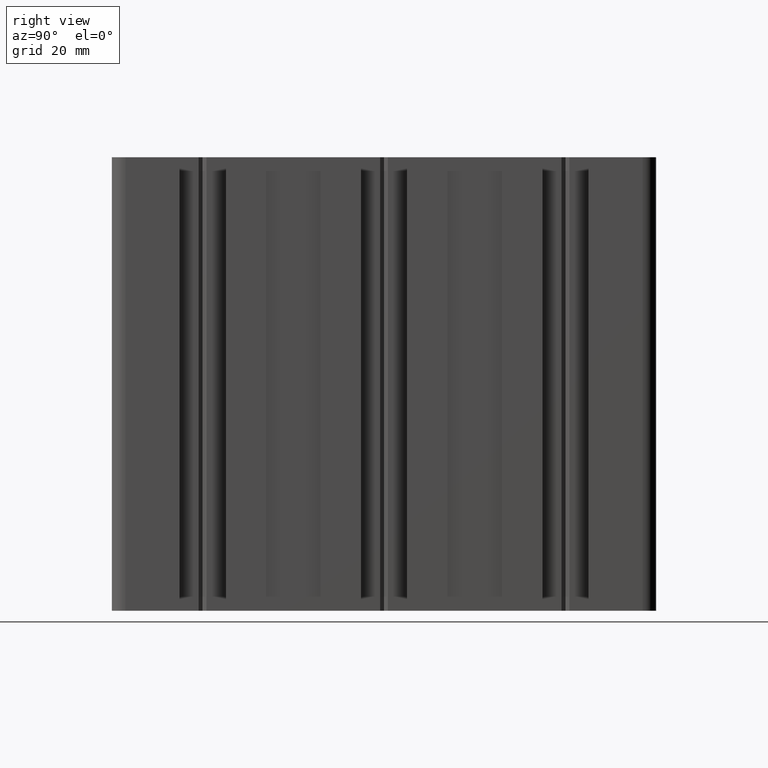
[diagram: clean part render]
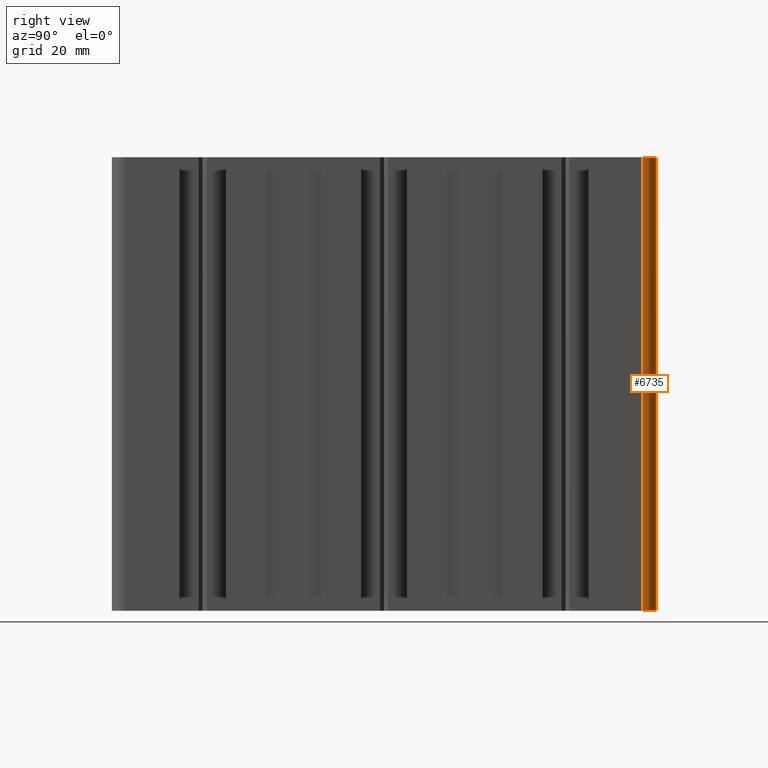
[diagram: same view with one face highlighted and labeled with its STEP entity id]
A machine part, right view. The second image highlights one B-rep face of the part: STEP entity #6735.
In plain terms, the highlighted cylindrical surface (edge-blend (fillet) strip) has radius 3 mm, axis along (-0, -0, -1).
Its self-contained STEP definition (entity closure, byte-faithful):
#407 = AXIS2_PLACEMENT_3D ( 'NONE', #436, #685, #705 ) ;
#436 = CARTESIAN_POINT ( 'NONE',  ( 17.00000000000002100, 56.99999999999999300, 100.0000000000000000 ) ) ;
#443 = FACE_OUTER_BOUND ( 'NONE', #6745, .T. ) ;
#445 = CYLINDRICAL_SURFACE ( 'NONE', #407, 2.999999999999997300 ) ;
#685 = DIRECTION ( 'NONE',  ( -0.0000000000000000000, -0.0000000000000000000, -1.000000000000000000 ) ) ;
#705 = DIRECTION ( 'NONE',  ( -1.000000000000000000, 0.0000000000000000000, 0.0000000000000000000 ) ) ;
#914 = DIRECTION ( 'NONE',  ( -0.0000000000000000000, -0.0000000000000000000, -1.000000000000000000 ) ) ;
#915 = VECTOR ( 'NONE', #914, 1000.000000000000000 ) ;
#916 = CARTESIAN_POINT ( 'NONE',  ( 17.00000000000002100, 59.99999999999999300, 100.0000000000000000 ) ) ;
#918 = LINE ( 'NONE', #916, #915 ) ;
#994 = DIRECTION ( 'NONE',  ( -0.0000000000000000000, -0.0000000000000000000, -1.000000000000000000 ) ) ;
#995 = VECTOR ( 'NONE', #994, 1000.000000000000000 ) ;
#996 = CARTESIAN_POINT ( 'NONE',  ( 20.00000000000001800, 56.99999999999999300, 100.0000000000000000 ) ) ;
#997 = LINE ( 'NONE', #996, #995 ) ;
#3555 = CARTESIAN_POINT ( 'NONE',  ( 20.00000000000001800, 56.99999999999999300, 100.0000000000000000 ) ) ;
#3614 = CARTESIAN_POINT ( 'NONE',  ( 17.00000000000002100, 59.99999999999999300, 100.0000000000000000 ) ) ;
#3644 = DIRECTION ( 'NONE',  ( 1.000000000000000000, 0.0000000000000000000, 0.0000000000000000000 ) ) ;
#3645 = DIRECTION ( 'NONE',  ( 0.0000000000000000000, 0.0000000000000000000, 1.000000000000000000 ) ) ;
#3650 = CIRCLE ( 'NONE', #3654, 2.999999999999995600 ) ;
#3651 = CARTESIAN_POINT ( 'NONE',  ( 17.00000000000002100, 56.99999999999999300, 100.0000000000000000 ) ) ;
#3654 = AXIS2_PLACEMENT_3D ( 'NONE', #3651, #3645, #3644 ) ;
#4733 = VERTEX_POINT ( 'NONE', #9916 ) ;
#4797 = VERTEX_POINT ( 'NONE', #10024 ) ;
#4801 = EDGE_CURVE ( 'NONE', #4797, #4733, #10022, .T. ) ;
#6733 = EDGE_CURVE ( 'NONE', #12499, #4733, #918, .T. ) ;
#6734 = ORIENTED_EDGE ( 'NONE', *, *, #6733, .F. ) ;
#6735 = ADVANCED_FACE ( 'NONE', ( #443 ), #445, .T. ) ;
#6736 = ORIENTED_EDGE ( 'NONE', *, *, #4801, .T. ) ;
#6745 = EDGE_LOOP ( 'NONE', ( #6736, #6734, #6784, #6785 ) ) ;
#6749 = EDGE_CURVE ( 'NONE', #12454, #4797, #997, .T. ) ;
#6784 = ORIENTED_EDGE ( 'NONE', *, *, #12506, .F. ) ;
#6785 = ORIENTED_EDGE ( 'NONE', *, *, #6749, .T. ) ;
#9916 = CARTESIAN_POINT ( 'NONE',  ( 17.00000000000002100, 59.99999999999999300, 0.0000000000000000000 ) ) ;
#9984 = AXIS2_PLACEMENT_3D ( 'NONE', #10016, #10015, #10014 ) ;
#10014 = DIRECTION ( 'NONE',  ( 1.000000000000000000, 0.0000000000000000000, 0.0000000000000000000 ) ) ;
#10015 = DIRECTION ( 'NONE',  ( 0.0000000000000000000, 0.0000000000000000000, 1.000000000000000000 ) ) ;
#10016 = CARTESIAN_POINT ( 'NONE',  ( 17.00000000000002100, 56.99999999999999300, 0.0000000000000000000 ) ) ;
#10022 = CIRCLE ( 'NONE', #9984, 2.999999999999995600 ) ;
#10024 = CARTESIAN_POINT ( 'NONE',  ( 20.00000000000001800, 56.99999999999999300, 0.0000000000000000000 ) ) ;
#12454 = VERTEX_POINT ( 'NONE', #3555 ) ;
#12499 = VERTEX_POINT ( 'NONE', #3614 ) ;
#12506 = EDGE_CURVE ( 'NONE', #12454, #12499, #3650, .T. ) ;